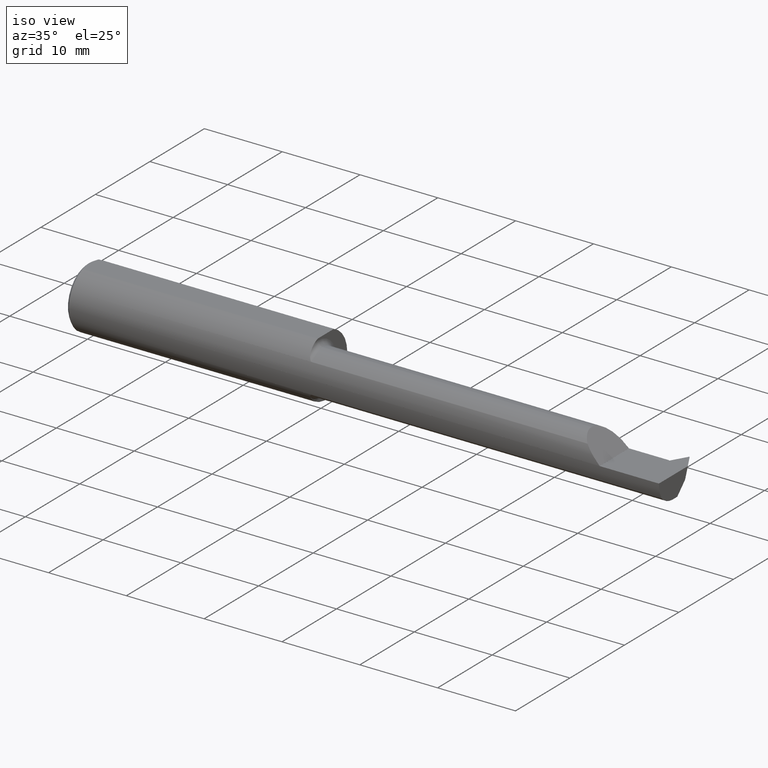
[diagram: clean part render]
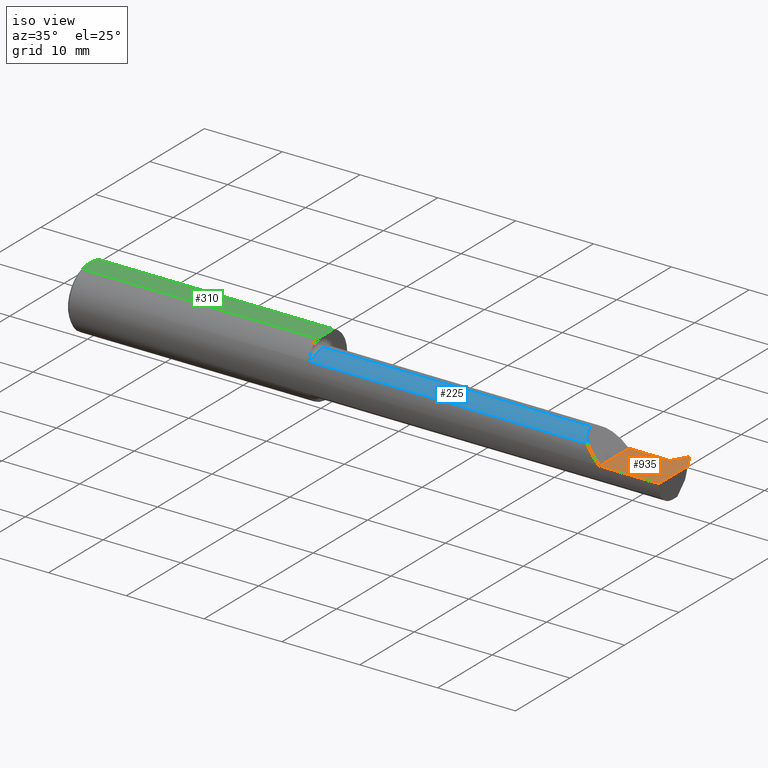
[diagram: same view with three faces highlighted in distinct colors, each labeled with its STEP entity id]
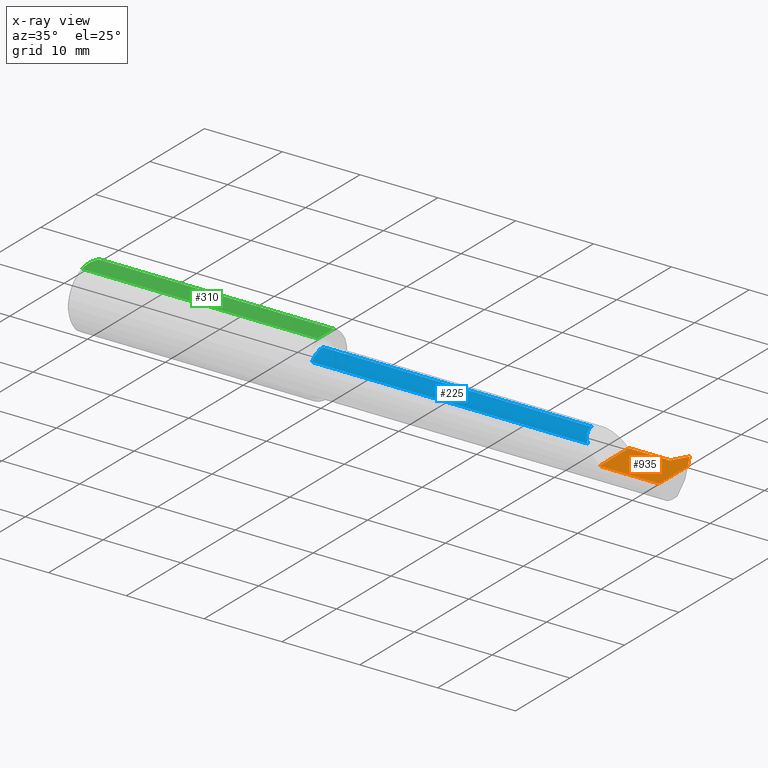
[diagram: x-ray of the same camera — body ghosted, the three highlighted faces saturated]
A machine part, iso view with three faces highlighted in distinct colors.
The next image is the same camera in x-ray (body ghosted, the three faces saturated) — at least one of them is partly hidden behind the body in this view.
Their STEP definitions:

[orange] entity #935 — the highlighted planar face has unit normal (-0, 0, -1).
#27 = EDGE_LOOP ( 'NONE', ( #448, #812, #361, #849, #398, #468, #95, #322, #819 ) ) ;
#33 = CARTESIAN_POINT ( 'NONE',  ( 2.700000000000000178, 0.1749999999999999889, -3.979970649922725226E-17 ) ) ;
#34 = EDGE_CURVE ( 'NONE', #797, #83, #266, .T. ) ;
#41 = DIRECTION ( 'NONE',  ( 5.463695987328525648E-15, -1.000000000000000000, -0.000000000000000000 ) ) ;
#46 = CARTESIAN_POINT ( 'NONE',  ( 3.000000000000000444, -0.1560999999999999333, -3.979970649922725226E-17 ) ) ;
#53 = CARTESIAN_POINT ( 'NONE',  ( 2.900999999999999801, 0.05390000000000002428, 0.000000000000000000 ) ) ;
#66 = EDGE_CURVE ( 'NONE', #397, #316, #565, .T. ) ;
#83 = VERTEX_POINT ( 'NONE', #53 ) ;
#87 = CARTESIAN_POINT ( 'NONE',  ( 3.000000000000000444, 0.05265867555372680253, 0.000000000000000000 ) ) ;
#95 = ORIENTED_EDGE ( 'NONE', *, *, #129, .F. ) ;
#104 = DIRECTION ( 'NONE',  ( -1.000000000000000000, 0.000000000000000000, 0.000000000000000000 ) ) ;
#105 = DIRECTION ( 'NONE',  ( -0.000000000000000000, 1.000000000000000000, -0.000000000000000000 ) ) ;
#118 = VECTOR ( 'NONE', #802, 39.37007874015748143 ) ;
#119 = AXIS2_PLACEMENT_3D ( 'NONE', #33, #917, #104 ) ;
#121 = CARTESIAN_POINT ( 'NONE',  ( 2.951749999999999652, 0.1319000000000034867, -3.979970649922725226E-17 ) ) ;
#129 = EDGE_CURVE ( 'NONE', #548, #797, #295, .T. ) ;
#137 = EDGE_CURVE ( 'NONE', #829, #316, #438, .T. ) ;
#170 = LINE ( 'NONE', #609, #212 ) ;
#177 = CARTESIAN_POINT ( 'NONE',  ( 2.954250000000000487, 0.1319000000000035422, 0.000000000000000000 ) ) ;
#191 = CARTESIAN_POINT ( 'NONE',  ( 3.000000000000000444, 0.1749999999999999889, -3.979970649922725226E-17 ) ) ;
#194 = CARTESIAN_POINT ( 'NONE',  ( 2.700000000000000178, 0.05590000000000001218, -3.979970649922725226E-17 ) ) ;
#199 = EDGE_CURVE ( 'NONE', #83, #835, #228, .T. ) ;
#212 = VECTOR ( 'NONE', #823, 39.37007874015748143 ) ;
#228 = LINE ( 'NONE', #941, #242 ) ;
#242 = VECTOR ( 'NONE', #721, 39.37007874015748143 ) ;
#249 = DIRECTION ( 'NONE',  ( -1.000000000000000000, -7.100663931524167401E-15, 0.000000000000000000 ) ) ;
#258 = EDGE_CURVE ( 'NONE', #829, #526, #529, .T. ) ;
#260 = VECTOR ( 'NONE', #249, 39.37007874015748143 ) ;
#266 = LINE ( 'NONE', #497, #897 ) ;
#295 = LINE ( 'NONE', #357, #118 ) ;
#316 = VERTEX_POINT ( 'NONE', #87 ) ;
#319 = VECTOR ( 'NONE', #105, 39.37007874015748143 ) ;
#322 = ORIENTED_EDGE ( 'NONE', *, *, #483, .F. ) ;
#357 = CARTESIAN_POINT ( 'NONE',  ( 1.205000000000000293, 0.05589999999999999136, -3.979970649922723994E-17 ) ) ;
#361 = ORIENTED_EDGE ( 'NONE', *, *, #258, .T. ) ;
#366 = EDGE_CURVE ( 'NONE', #835, #526, #170, .T. ) ;
#397 = VERTEX_POINT ( 'NONE', #46 ) ;
#398 = ORIENTED_EDGE ( 'NONE', *, *, #199, .F. ) ;
#402 = LINE ( 'NONE', #706, #780 ) ;
#408 = LINE ( 'NONE', #776, #319 ) ;
#415 = CARTESIAN_POINT ( 'NONE',  ( 2.700000000000000178, -0.1560999999999999888, -3.979970649922725226E-17 ) ) ;
#438 = LINE ( 'NONE', #596, #746 ) ;
#448 = ORIENTED_EDGE ( 'NONE', *, *, #66, .T. ) ;
#468 = ORIENTED_EDGE ( 'NONE', *, *, #34, .F. ) ;
#483 = EDGE_CURVE ( 'NONE', #923, #548, #408, .T. ) ;
#486 = DIRECTION ( 'NONE',  ( -0.000000000000000000, 1.000000000000000000, -0.000000000000000000 ) ) ;
#488 = CARTESIAN_POINT ( 'NONE',  ( 2.906716679003206405, 0.05390000000000003122, 0.000000000000000000 ) ) ;
#497 = CARTESIAN_POINT ( 'NONE',  ( 2.900999999999999801, 0.05390000000000002428, 0.000000000000000000 ) ) ;
#526 = VERTEX_POINT ( 'NONE', #121 ) ;
#529 = LINE ( 'NONE', #744, #260 ) ;
#548 = VERTEX_POINT ( 'NONE', #194 ) ;
#563 = CARTESIAN_POINT ( 'NONE',  ( 2.900999999999999801, 0.05590000000000001218, 0.000000000000000000 ) ) ;
#565 = LINE ( 'NONE', #191, #662 ) ;
#596 = CARTESIAN_POINT ( 'NONE',  ( 2.952999999999999847, 0.1340650635094651488, 0.000000000000000000 ) ) ;
#609 = CARTESIAN_POINT ( 'NONE',  ( 2.906716679003206405, 0.05390000000000003122, 0.000000000000000000 ) ) ;
#634 = PLANE ( 'NONE',  #119 ) ;
#639 = DIRECTION ( 'NONE',  ( -1.000000000000000000, -0.000000000000000000, -0.000000000000000000 ) ) ;
#642 = FACE_OUTER_BOUND ( 'NONE', #27, .T. ) ;
#662 = VECTOR ( 'NONE', #486, 39.37007874015748143 ) ;
#706 = CARTESIAN_POINT ( 'NONE',  ( 3.000000000000000444, -0.1560999999999999333, -3.979970649922723994E-17 ) ) ;
#721 = DIRECTION ( 'NONE',  ( 1.000000000000000000, 1.493353916743028978E-15, -0.000000000000000000 ) ) ;
#744 = CARTESIAN_POINT ( 'NONE',  ( 2.700000000000000622, 0.1319000000000017103, -3.979970649922725226E-17 ) ) ;
#746 = VECTOR ( 'NONE', #946, 39.37007874015748143 ) ;
#776 = CARTESIAN_POINT ( 'NONE',  ( 2.700000000000000178, 0.1749999999999999889, -3.979970649922725226E-17 ) ) ;
#780 = VECTOR ( 'NONE', #639, 39.37007874015748143 ) ;
#797 = VERTEX_POINT ( 'NONE', #563 ) ;
#802 = DIRECTION ( 'NONE',  ( 1.000000000000000000, 0.000000000000000000, 0.000000000000000000 ) ) ;
#812 = ORIENTED_EDGE ( 'NONE', *, *, #137, .F. ) ;
#819 = ORIENTED_EDGE ( 'NONE', *, *, #846, .F. ) ;
#823 = DIRECTION ( 'NONE',  ( 0.5000000000000034417, 0.8660254037844365982, 0.000000000000000000 ) ) ;
#829 = VERTEX_POINT ( 'NONE', #177 ) ;
#835 = VERTEX_POINT ( 'NONE', #488 ) ;
#846 = EDGE_CURVE ( 'NONE', #397, #923, #402, .T. ) ;
#849 = ORIENTED_EDGE ( 'NONE', *, *, #366, .F. ) ;
#897 = VECTOR ( 'NONE', #41, 39.37007874015748143 ) ;
#917 = DIRECTION ( 'NONE',  ( -0.000000000000000000, 0.000000000000000000, -1.000000000000000000 ) ) ;
#923 = VERTEX_POINT ( 'NONE', #415 ) ;
#935 = ADVANCED_FACE ( 'NONE', ( #642 ), #634, .F. ) ;
#941 = CARTESIAN_POINT ( 'NONE',  ( 2.906716679003206405, 0.05390000000000003122, 0.000000000000000000 ) ) ;
#946 = DIRECTION ( 'NONE',  ( 0.4999999999999976685, -0.8660254037844400399, 0.000000000000000000 ) ) ;

[blue] entity #225 — the highlighted cylindrical surface (edge-blend (fillet) strip) has radius 2.8194 mm, axis along (-1, -0, -0).
#38 = LINE ( 'NONE', #775, #803 ) ;
#42 = CARTESIAN_POINT ( 'NONE',  ( 2.625027139386173491, -0.1368622504537206908, 0.07507286061382660580 ) ) ;
#60 = CARTESIAN_POINT ( 'NONE',  ( 2.589100000000000623, -0.08664595039291338174, 0.1110000000000000014 ) ) ;
#61 = CARTESIAN_POINT ( 'NONE',  ( 1.205000000000000293, -0.05509999999999999620, 0.000000000000000000 ) ) ;
#88 = VERTEX_POINT ( 'NONE', #581 ) ;
#93 = DIRECTION ( 'NONE',  ( 0.000000000000000000, 0.000000000000000000, -1.000000000000000000 ) ) ;
#151 =( BOUNDED_CURVE ( )  B_SPLINE_CURVE ( 3, ( #861, #60, #359, #354 ),
 .UNSPECIFIED., .F., .F. ) 
 B_SPLINE_CURVE_WITH_KNOTS ( ( 4, 4 ),
 ( 0.000000000000000000, 0.8280247010054061496 ),
 .UNSPECIFIED. ) 
 CURVE ( )  GEOMETRIC_REPRESENTATION_ITEM ( )  RATIONAL_B_SPLINE_CURVE ( ( 1.000000000000000000, 0.9436760562907881011, 0.9436760562907881011, 1.000000000000000000 ) ) 
 REPRESENTATION_ITEM ( '' )  );
#155 = ORIENTED_EDGE ( 'NONE', *, *, #592, .F. ) ;
#190 = LINE ( 'NONE', #496, #852 ) ;
#225 = ADVANCED_FACE ( 'NONE', ( #727 ), #434, .T. ) ;
#255 = EDGE_LOOP ( 'NONE', ( #155, #914, #682, #909 ) ) ;
#257 = CARTESIAN_POINT ( 'NONE',  ( 1.230000000000000426, -0.05509999999999999620, 0.1110000000000000014 ) ) ;
#272 = DIRECTION ( 'NONE',  ( 1.000000000000000000, 0.000000000000000000, 0.000000000000000000 ) ) ;
#315 = DIRECTION ( 'NONE',  ( 0.000000000000000000, 0.000000000000000000, 1.000000000000000000 ) ) ;
#354 = CARTESIAN_POINT ( 'NONE',  ( 2.625027139386173491, -0.1368622504537206908, 0.07507286061382660580 ) ) ;
#359 = CARTESIAN_POINT ( 'NONE',  ( 2.601790491667020255, -0.1155267122845507061, 0.09830950833298011948 ) ) ;
#362 = CIRCLE ( 'NONE', #865, 0.1110000000000000014 ) ;
#370 = EDGE_CURVE ( 'NONE', #808, #589, #362, .T. ) ;
#426 = EDGE_CURVE ( 'NONE', #589, #843, #190, .T. ) ;
#434 = CYLINDRICAL_SURFACE ( 'NONE', #675, 0.1110000000000000014 ) ;
#462 = CARTESIAN_POINT ( 'NONE',  ( 1.230000000000000426, -0.05509999999999999620, 0.000000000000000000 ) ) ;
#496 = CARTESIAN_POINT ( 'NONE',  ( 2.055500000000000327, -0.1368622504537204410, 0.07507286061382698050 ) ) ;
#581 = CARTESIAN_POINT ( 'NONE',  ( 2.589100000000000623, -0.05509999999999999620, 0.1110000000000000014 ) ) ;
#589 = VERTEX_POINT ( 'NONE', #792 ) ;
#592 = EDGE_CURVE ( 'NONE', #88, #843, #151, .T. ) ;
#675 = AXIS2_PLACEMENT_3D ( 'NONE', #61, #689, #315 ) ;
#682 = ORIENTED_EDGE ( 'NONE', *, *, #370, .T. ) ;
#689 = DIRECTION ( 'NONE',  ( -1.000000000000000000, -0.000000000000000000, -0.000000000000000000 ) ) ;
#727 = FACE_OUTER_BOUND ( 'NONE', #255, .T. ) ;
#755 = DIRECTION ( 'NONE',  ( 1.000000000000000000, 0.000000000000000000, 0.000000000000000000 ) ) ;
#770 = DIRECTION ( 'NONE',  ( -1.000000000000000000, -0.000000000000000000, -0.000000000000000000 ) ) ;
#775 = CARTESIAN_POINT ( 'NONE',  ( 1.205000000000000293, -0.05509999999999999620, 0.1110000000000000014 ) ) ;
#792 = CARTESIAN_POINT ( 'NONE',  ( 1.230000000000000426, -0.1368622504537204410, 0.07507286061382698050 ) ) ;
#803 = VECTOR ( 'NONE', #770, 39.37007874015748143 ) ;
#808 = VERTEX_POINT ( 'NONE', #257 ) ;
#843 = VERTEX_POINT ( 'NONE', #42 ) ;
#852 = VECTOR ( 'NONE', #272, 39.37007874015748143 ) ;
#861 = CARTESIAN_POINT ( 'NONE',  ( 2.589100000000000623, -0.05509999999999999620, 0.1110000000000000014 ) ) ;
#865 = AXIS2_PLACEMENT_3D ( 'NONE', #462, #755, #93 ) ;
#872 = EDGE_CURVE ( 'NONE', #88, #808, #38, .T. ) ;
#909 = ORIENTED_EDGE ( 'NONE', *, *, #426, .T. ) ;
#914 = ORIENTED_EDGE ( 'NONE', *, *, #872, .T. ) ;

[green] entity #310 — the highlighted planar face has unit normal (-0, 0, -1).
#2 = CARTESIAN_POINT ( 'NONE',  ( 0.005030132703187127977, 0.01970541148932071149, 0.1450999999999999512 ) ) ;
#4 = ORIENTED_EDGE ( 'NONE', *, *, #378, .F. ) ;
#8 = CARTESIAN_POINT ( 'NONE',  ( 0.004000000000002368848, 1.884449684559922719E-17, 0.1450999999999999512 ) ) ;
#20 = VERTEX_POINT ( 'NONE', #574 ) ;
#74 = DIRECTION ( 'NONE',  ( -1.000000000000000000, 0.000000000000000000, 0.000000000000000000 ) ) ;
#90 = ORIENTED_EDGE ( 'NONE', *, *, #924, .T. ) ;
#99 = VERTEX_POINT ( 'NONE', #144 ) ;
#124 = CARTESIAN_POINT ( 'NONE',  ( 0.01500000000000247836, -0.05756040305626795861, 0.1450999999999999512 ) ) ;
#126 = ORIENTED_EDGE ( 'NONE', *, *, #862, .F. ) ;
#144 = CARTESIAN_POINT ( 'NONE',  ( 0.01500000000000298143, 0.05756040305626777126, 0.1451000000000000068 ) ) ;
#158 = CARTESIAN_POINT ( 'NONE',  ( 0.004000000000002320276, 0.009855731042683153406, 0.1450999999999999790 ) ) ;
#165 = CARTESIAN_POINT ( 'NONE',  ( 0.000000000000000000, 0.1749999999999999889, 0.1450999999999999512 ) ) ;
#211 = ORIENTED_EDGE ( 'NONE', *, *, #356, .T. ) ;
#252 = B_SPLINE_CURVE_WITH_KNOTS ( 'NONE', 3,
 ( #373, #613, #674, #2, #158, #8 ),
 .UNSPECIFIED., .F., .F.,
 ( 4, 2, 4 ),
 ( 0.003161694502929464183, 0.003901142131335601053, 0.004640589759741737923 ),
 .UNSPECIFIED. ) ;
#267 = CARTESIAN_POINT ( 'NONE',  ( 0.004000000000002368848, 1.884449684559922719E-17, 0.1450999999999999512 ) ) ;
#271 = DIRECTION ( 'NONE',  ( -1.000000000000000000, -0.000000000000000000, -0.000000000000000000 ) ) ;
#296 = VERTEX_POINT ( 'NONE', #604 ) ;
#310 = ADVANCED_FACE ( 'NONE', ( #885 ), #381, .F. ) ;
#343 = CARTESIAN_POINT ( 'NONE',  ( 0.005011318927235305747, -0.01959047621504288877, 0.1450999999999999512 ) ) ;
#356 = EDGE_CURVE ( 'NONE', #99, #20, #252, .T. ) ;
#368 = LINE ( 'NONE', #869, #678 ) ;
#373 = CARTESIAN_POINT ( 'NONE',  ( 0.01500000000000298143, 0.05756040305626777126, 0.1451000000000000068 ) ) ;
#378 = EDGE_CURVE ( 'NONE', #99, #665, #390, .T. ) ;
#381 = PLANE ( 'NONE',  #521 ) ;
#390 = LINE ( 'NONE', #648, #455 ) ;
#396 = DIRECTION ( 'NONE',  ( -0.000000000000000000, 0.000000000000000000, -1.000000000000000000 ) ) ;
#437 = DIRECTION ( 'NONE',  ( 0.000000000000000000, -1.000000000000000000, 0.000000000000000000 ) ) ;
#439 = EDGE_LOOP ( 'NONE', ( #864, #4, #211, #90, #126 ) ) ;
#453 = VERTEX_POINT ( 'NONE', #124 ) ;
#455 = VECTOR ( 'NONE', #932, 39.37007874015748143 ) ;
#521 = AXIS2_PLACEMENT_3D ( 'NONE', #165, #396, #74 ) ;
#567 = CARTESIAN_POINT ( 'NONE',  ( 0.008818052469299356155, -0.03886761757380391424, 0.1450999999999999512 ) ) ;
#570 = CARTESIAN_POINT ( 'NONE',  ( 0.004000000000002320276, -0.009851916903761264235, 0.1450999999999999235 ) ) ;
#574 = CARTESIAN_POINT ( 'NONE',  ( 0.004000000000002368848, 1.884449684559922719E-17, 0.1450999999999999512 ) ) ;
#576 = EDGE_CURVE ( 'NONE', #665, #296, #368, .T. ) ;
#604 = CARTESIAN_POINT ( 'NONE',  ( 1.205000000000000293, -0.05756040305626796555, 0.1450999999999999512 ) ) ;
#613 = CARTESIAN_POINT ( 'NONE',  ( 0.01158831187866626519, 0.04830813087846593662, 0.1450999999999999235 ) ) ;
#648 = CARTESIAN_POINT ( 'NONE',  ( 3.000000000000000444, 0.05756040305626789616, 0.1450999999999999235 ) ) ;
#654 = CARTESIAN_POINT ( 'NONE',  ( 1.205000000000000293, 0.05756040305626788228, 0.1450999999999999512 ) ) ;
#665 = VERTEX_POINT ( 'NONE', #654 ) ;
#674 = CARTESIAN_POINT ( 'NONE',  ( 0.008823987512430776781, 0.03887788046871706177, 0.1450999999999999512 ) ) ;
#678 = VECTOR ( 'NONE', #437, 39.37007874015748143 ) ;
#702 = CARTESIAN_POINT ( 'NONE',  ( 0.01500000000000247836, -0.05756040305626795861, 0.1450999999999999512 ) ) ;
#763 = VECTOR ( 'NONE', #271, 39.37007874015748143 ) ;
#778 = CARTESIAN_POINT ( 'NONE',  ( 3.000000000000000444, -0.05756040305626789616, 0.1450999999999999235 ) ) ;
#800 = B_SPLINE_CURVE_WITH_KNOTS ( 'NONE', 3,
 ( #267, #570, #343, #567, #831, #702 ),
 .UNSPECIFIED., .F., .F.,
 ( 4, 2, 4 ),
 ( 0.004640589759741737923, 0.005379751224090841694, 0.006118912688439944597 ),
 .UNSPECIFIED. ) ;
#831 = CARTESIAN_POINT ( 'NONE',  ( 0.01161840624095796144, -0.04838974479540052165, 0.1450999999999999790 ) ) ;
#862 = EDGE_CURVE ( 'NONE', #296, #453, #911, .T. ) ;
#864 = ORIENTED_EDGE ( 'NONE', *, *, #576, .F. ) ;
#869 = CARTESIAN_POINT ( 'NONE',  ( 1.205000000000000293, 0.1749999999999999889, 0.1450999999999999512 ) ) ;
#885 = FACE_OUTER_BOUND ( 'NONE', #439, .T. ) ;
#911 = LINE ( 'NONE', #778, #763 ) ;
#924 = EDGE_CURVE ( 'NONE', #20, #453, #800, .T. ) ;
#932 = DIRECTION ( 'NONE',  ( 1.000000000000000000, 0.000000000000000000, 0.000000000000000000 ) ) ;